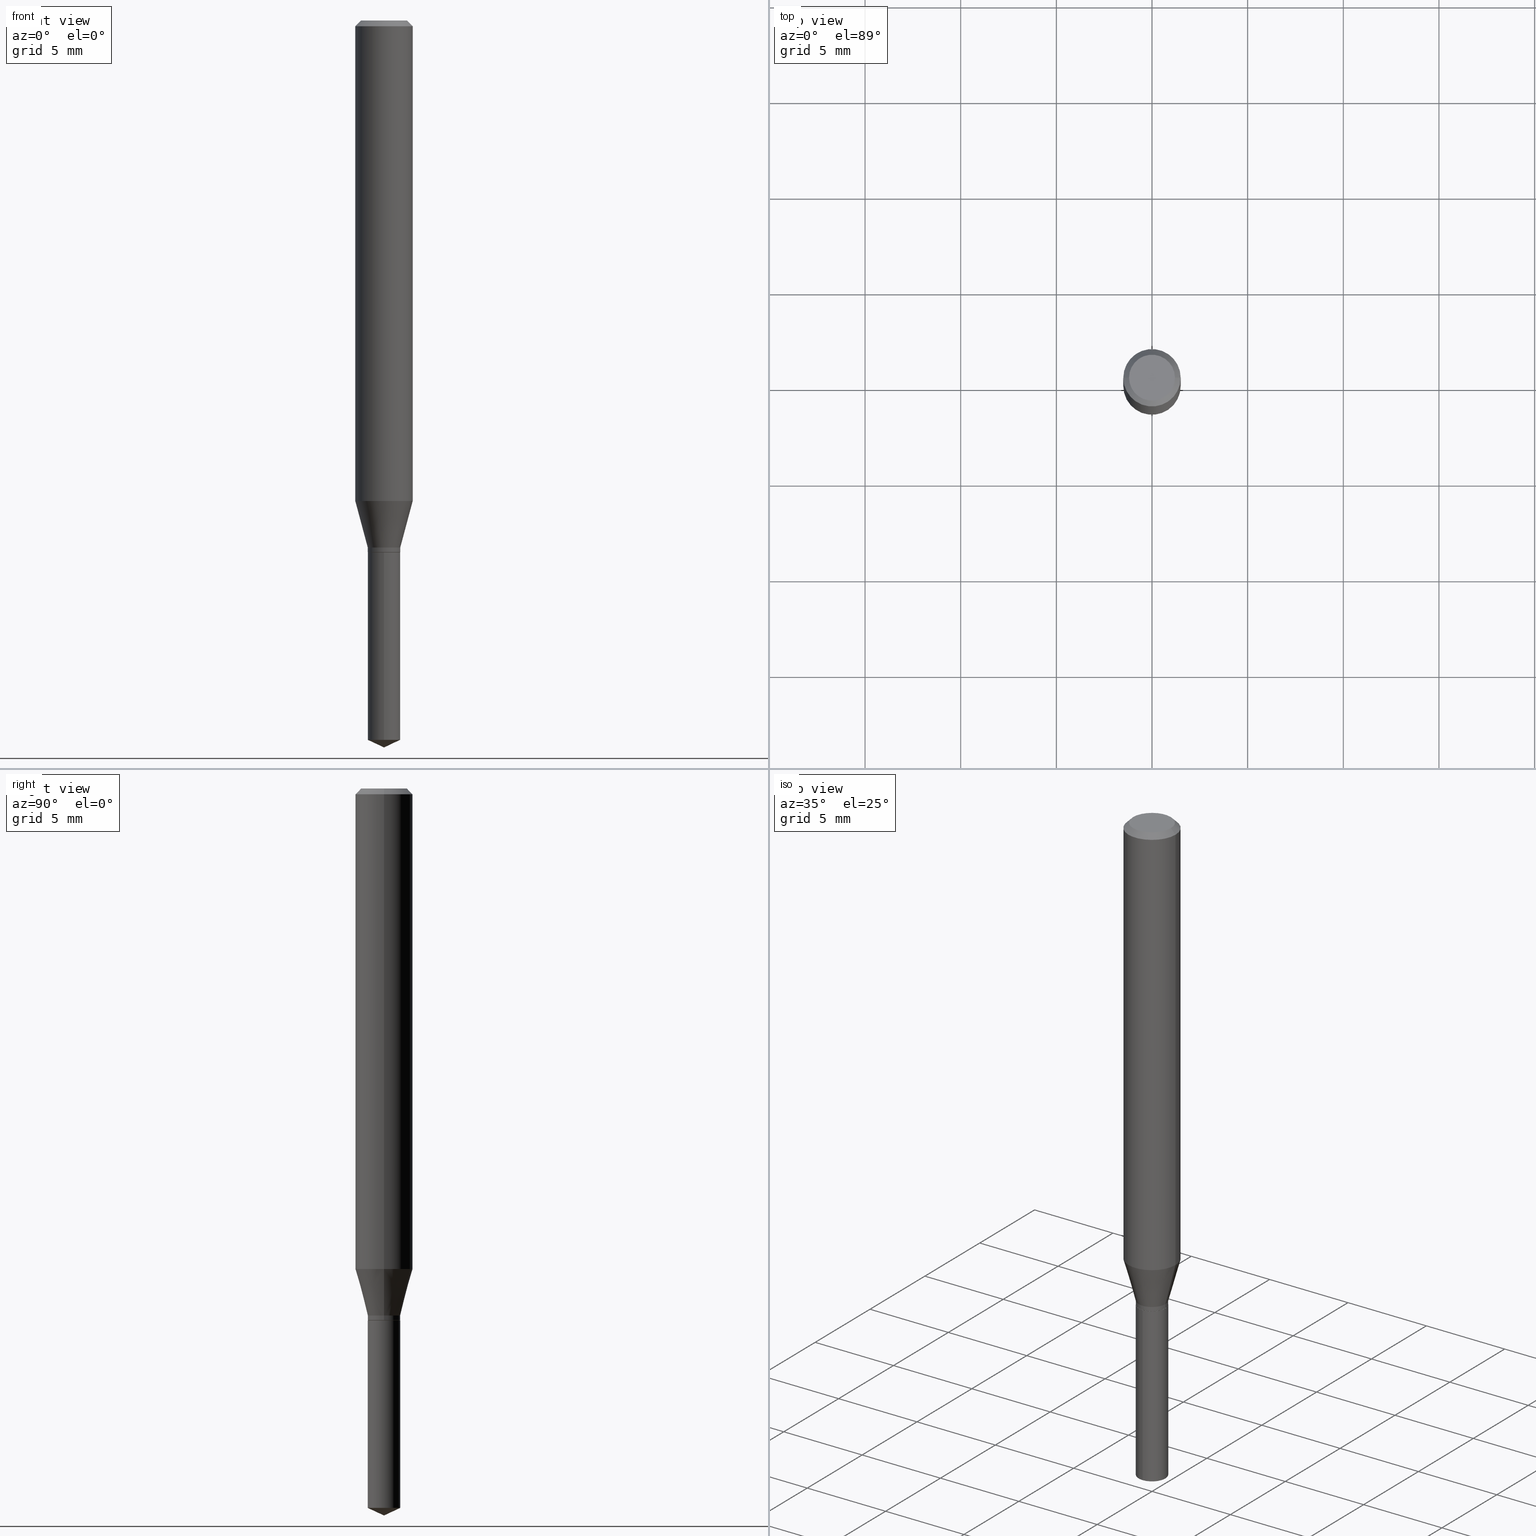
[diagram: canonical four-view strip — front | top / right | iso, engineering-drawing reading convention]
A machine part, canonical four-view strip (front | top / right | iso — engineering-drawing reading convention). The complete STEP part file that produces these views, byte-faithful:
ISO-10303-21;
HEADER;
FILE_DESCRIPTION (( 'STEP AP203' ),
    '1' );
FILE_NAME ('07908.STEP',
    '2024-04-24T05:54:59',
    ( '' ),
    ( '' ),
    'SwSTEP 2.0',
    'SolidWorks 2023',
    '' );
FILE_SCHEMA (( 'CONFIG_CONTROL_DESIGN' ));
ENDSEC;

DATA;
#1 = DIRECTION ( 'NONE',  ( 6.982962677686265922E-15, 1.000000000000000000, -3.491479321953280158E-15 ) ) ;
#2 = CONICAL_SURFACE ( 'NONE', #34, 0.03295000000000000012, 0.7853981633972775267 ) ;
#3 = FACE_OUTER_BOUND ( 'NONE', #113, .T. ) ;
#4 = ADVANCED_FACE ( 'NONE', ( #3 ), #220, .T. ) ;
#5 = CARTESIAN_POINT ( 'NONE',  ( 2.888098660104664204E-31, -4.123439461173780263E-17, -0.01181000000000007218 ) ) ;
#6 = AXIS2_PLACEMENT_3D ( 'NONE', #455, #20, #164 ) ;
#7 = CC_DESIGN_APPROVAL ( #147, ( #409 ) ) ;
#8 = DIRECTION ( 'NONE',  ( -1.000000000000000000, 6.982962677686266711E-15, 0.000000000000000000 ) ) ;
#9 = ORIENTED_EDGE ( 'NONE', *, *, #430, .F. ) ;
#10 = CARTESIAN_POINT ( 'NONE',  ( -0.05904999999999999832, 3.711095515056362547E-16, -0.01181000000000007218 ) ) ;
#11 = DIRECTION ( 'NONE',  ( -2.445468806185136597E-29, 3.491481338843145583E-15, 1.000000000000000000 ) ) ;
#12 = CARTESIAN_POINT ( 'NONE',  ( 2.676565608369631794E-29, -3.821426325363822773E-15, -1.094499999999999806 ) ) ;
#13 =( NAMED_UNIT ( * ) SI_UNIT ( $, .STERADIAN. ) SOLID_ANGLE_UNIT ( ) );
#14 = ORIENTED_EDGE ( 'NONE', *, *, #163, .T. ) ;
#15 = EDGE_CURVE ( 'NONE', #235, #295, #418, .T. ) ;
#16 = DIRECTION ( 'NONE',  ( 1.000000000000000000, 0.000000000000000000, 0.000000000000000000 ) ) ;
#17 = PRODUCT_DEFINITION_SHAPE ( 'NONE', 'NONE',  #484 ) ;
#18 = LINE ( 'NONE', #399, #22 ) ;
#19 = PERSON_AND_ORGANIZATION ( #272, #377 ) ;
#20 = DIRECTION ( 'NONE',  ( -2.445468806185136597E-29, 3.491481338843145583E-15, 1.000000000000000000 ) ) ;
#21 = DATE_AND_TIME ( #142, #160 ) ;
#22 = VECTOR ( 'NONE', #56, 39.37007874015748143 ) ;
#23 = AXIS2_PLACEMENT_3D ( 'NONE', #189, #153, #311 ) ;
#24 = DIRECTION ( 'NONE',  ( -6.982962677686264344E-15, -1.000000000000000000, 4.083479811157344024E-15 ) ) ;
#25 = CARTESIAN_POINT ( 'NONE',  ( 0.03295000000000000012, -4.051514945593585621E-15, -1.094500000000000028 ) ) ;
#26 = ORIENTED_EDGE ( 'NONE', *, *, #483, .T. ) ;
#27 = COORDINATED_UNIVERSAL_TIME_OFFSET ( 5, 0, .BEHIND. ) ;
#28 = DIRECTION ( 'NONE',  ( 1.000000000000000000, -6.982962677686264344E-15, 0.000000000000000000 ) ) ;
#29 = CARTESIAN_POINT ( 'NONE',  ( 2.675342873966538993E-29, -3.819680584694400481E-15, -1.093999999999999861 ) ) ;
#30 = VERTEX_POINT ( 'NONE', #120 ) ;
#31 = LINE ( 'NONE', #316, #442 ) ;
#32 = EDGE_CURVE ( 'NONE', #382, #92, #269, .T. ) ;
#33 = CIRCLE ( 'NONE', #342, 0.03295000000000000012 ) ;
#34 = AXIS2_PLACEMENT_3D ( 'NONE', #330, #405, #264 ) ;
#35 = LOCAL_TIME ( 1, 54, 59.00000000000000000, #140 ) ;
#36 = FACE_OUTER_BOUND ( 'NONE', #284, .T. ) ;
#37 = APPLICATION_CONTEXT ( 'configuration controlled 3d designs of mechanical parts and assemblies' ) ;
#38 = FACE_OUTER_BOUND ( 'NONE', #420, .T. ) ;
#39 = ORIENTED_EDGE ( 'NONE', *, *, #314, .F. ) ;
#40 = ADVANCED_FACE ( 'NONE', ( #344 ), #170, .T. ) ;
#41 = DIRECTION ( 'NONE',  ( -2.445468806185136877E-29, 3.491481338843145188E-15, 1.000000000000000000 ) ) ;
#42 = VERTEX_POINT ( 'NONE', #424 ) ;
#43 = ADVANCED_FACE ( 'NONE', ( #249 ), #152, .T. ) ;
#44 = MANIFOLD_SOLID_BREP ( 'Body-Move/Copy2[1]', #247 ) ;
#45 =( NAMED_UNIT ( * ) PLANE_ANGLE_UNIT ( ) SI_UNIT ( $, .RADIAN. ) );
#46 = ADVANCED_BREP_SHAPE_REPRESENTATION ( '07908', ( #44, #371, #329 ), #50 ) ;
#47 = ADVANCED_FACE ( 'NONE', ( #53 ), #394, .T. ) ;
#48 = CYLINDRICAL_SURFACE ( 'NONE', #348, 0.05905000000000006077 ) ;
#49 = AXIS2_PLACEMENT_3D ( 'NONE', #186, #336, #150 ) ;
#50 =( GEOMETRIC_REPRESENTATION_CONTEXT ( 3 ) GLOBAL_UNCERTAINTY_ASSIGNED_CONTEXT ( ( #101 ) ) GLOBAL_UNIT_ASSIGNED_CONTEXT ( ( #96, #45, #13 ) ) REPRESENTATION_CONTEXT ( 'NONE', 'WORKASPACE' ) );
#51 = ORIENTED_EDGE ( 'NONE', *, *, #462, .T. ) ;
#52 = CARTESIAN_POINT ( 'NONE',  ( 0.000000000000000000, 0.000000000000000000, 0.000000000000000000 ) ) ;
#53 = FACE_OUTER_BOUND ( 'NONE', #386, .T. ) ;
#54 = ORIENTED_EDGE ( 'NONE', *, *, #439, .F. ) ;
#55 = EDGE_CURVE ( 'NONE', #42, #464, #361, .T. ) ;
#56 = DIRECTION ( 'NONE',  ( -2.445470214571802396E-29, 3.491479321953280158E-15, 1.000000000000000000 ) ) ;
#57 = DIRECTION ( 'NONE',  ( -2.445468806185136597E-29, 3.491481338843145583E-15, 1.000000000000000000 ) ) ;
#58 = DIRECTION ( 'NONE',  ( -2.445470214571802116E-29, 3.491479321953280158E-15, 1.000000000000000000 ) ) ;
#59 = EDGE_CURVE ( 'NONE', #204, #464, #202, .T. ) ;
#60 = COORDINATED_UNIVERSAL_TIME_OFFSET ( 5, 0, .BEHIND. ) ;
#61 = CARTESIAN_POINT ( 'NONE',  ( 0.03345000000000000057, -4.053260686263006336E-15, -1.093999999999999861 ) ) ;
#62 = PERSON_AND_ORGANIZATION ( #272, #377 ) ;
#63 = APPLICATION_CONTEXT ( 'configuration controlled 3d designs of mechanical parts and assemblies' ) ;
#64 = DIRECTION ( 'NONE',  ( -6.982962677686264344E-15, -1.000000000000000000, 0.000000000000000000 ) ) ;
#65 = DIRECTION ( 'NONE',  ( 1.000000000000000000, -6.982962677686266711E-15, 0.000000000000000000 ) ) ;
#66 = EDGE_CURVE ( 'NONE', #295, #204, #31, .T. ) ;
#67 = EDGE_LOOP ( 'NONE', ( #168, #454, #14, #302 ) ) ;
#68 = CIRCLE ( 'NONE', #6, 0.05905000000000011628 ) ;
#69 = CARTESIAN_POINT ( 'NONE',  ( -0.03345000000000000057, 2.376765451117535162E-16, -1.645383787690265928E-30 ) ) ;
#70 = EDGE_LOOP ( 'NONE', ( #245, #26, #469, #388 ) ) ;
#71 = CARTESIAN_POINT ( 'NONE',  ( 3.658664905062460986E-29, -5.223606628546217219E-15, -1.496099999999999985 ) ) ;
#72 = EDGE_LOOP ( 'NONE', ( #340, #273, #82, #333 ) ) ;
#73 = DIRECTION ( 'NONE',  ( -6.982962677686268288E-15, -1.000000000000000000, 3.520397390770420738E-15 ) ) ;
#74 = DIRECTION ( 'NONE',  ( 1.000000000000000000, -6.982962677686264344E-15, 0.000000000000000000 ) ) ;
#75 = ORIENTED_EDGE ( 'NONE', *, *, #171, .T. ) ;
#76 = EDGE_CURVE ( 'NONE', #42, #434, #68, .T. ) ;
#77 = AXIS2_PLACEMENT_3D ( 'NONE', #29, #256, #74 ) ;
#78 = AXIS2_PLACEMENT_3D ( 'NONE', #427, #210, #240 ) ;
#79 = PLANE ( 'NONE',  #487 ) ;
#80 = CARTESIAN_POINT ( 'NONE',  ( 2.652110920307780249E-29, -3.786511511975391124E-15, -1.084499999999999797 ) ) ;
#81 = ORIENTED_EDGE ( 'NONE', *, *, #59, .F. ) ;
#82 = ORIENTED_EDGE ( 'NONE', *, *, #430, .T. ) ;
#83 = ADVANCED_FACE ( 'NONE', ( #364 ), #2, .T. ) ;
#84 = ORIENTED_EDGE ( 'NONE', *, *, #324, .T. ) ;
#85 = CLOSED_SHELL ( 'NONE', ( #83, #450, #474, #383, #47, #40, #4, #345, #320, #299, #238, #43 ) ) ;
#86 = CARTESIAN_POINT ( 'NONE',  ( 2.676565608369632355E-29, -3.821426325363822773E-15, -1.094500000000000028 ) ) ;
#87 = APPLICATION_PROTOCOL_DEFINITION ( 'international standard', 'config_control_design', 1994, #63 ) ;
#88 = DIRECTION ( 'NONE',  ( -2.445468806185136877E-29, 3.491481338843145188E-15, 1.000000000000000000 ) ) ;
#89 = EDGE_CURVE ( 'NONE', #30, #92, #322, .T. ) ;
#90 = LENGTH_MEASURE_WITH_UNIT ( LENGTH_MEASURE( 0.02539999999999999897 ), #251 );
#91 = LINE ( 'NONE', #467, #432 ) ;
#92 = VERTEX_POINT ( 'NONE', #225 ) ;
#93 = CC_DESIGN_PERSON_AND_ORGANIZATION_ASSIGNMENT ( #19, #447, ( #484 ) ) ;
#94 = AXIS2_PLACEMENT_3D ( 'NONE', #335, #144, #64 ) ;
#95 = APPROVAL_PERSON_ORGANIZATION ( #62, #309, #185 ) ;
#96 =( CONVERSION_BASED_UNIT ( 'INCH', #90 ) LENGTH_UNIT ( ) NAMED_UNIT ( #118 ) );
#97 = ORIENTED_EDGE ( 'NONE', *, *, #89, .F. ) ;
#98 = DIRECTION ( 'NONE',  ( 1.000000000000000000, -6.982962677686266711E-15, 4.876176775795935793E-29 ) ) ;
#99 = PRODUCT ( '07908', '07908', '', ( #282 ) ) ;
#100 = ORIENTED_EDGE ( 'NONE', *, *, #462, .F. ) ;
#101 = UNCERTAINTY_MEASURE_WITH_UNIT (LENGTH_MEASURE( 1.000000000000000082E-05 ), #96, 'distance_accuracy_value', 'NONE');
#102 = PERSON_AND_ORGANIZATION ( #272, #377 ) ;
#103 = DIRECTION ( 'NONE',  ( 2.445468806185136597E-29, -3.491481338843145583E-15, -1.000000000000000000 ) ) ;
#104 = VECTOR ( 'NONE', #222, 39.37007874015748143 ) ;
#105 = SECURITY_CLASSIFICATION_LEVEL ( 'unclassified' ) ;
#106 = APPROVAL_PERSON_ORGANIZATION ( #215, #147, #406 ) ;
#107 = FACE_OUTER_BOUND ( 'NONE', #297, .T. ) ;
#108 = CARTESIAN_POINT ( 'NONE',  ( -0.03295000000000000012, -3.587302493930870304E-15, -1.094500000000000028 ) ) ;
#109 = LINE ( 'NONE', #183, #174 ) ;
#110 = ORIENTED_EDGE ( 'NONE', *, *, #55, .T. ) ;
#111 = CIRCLE ( 'NONE', #478, 0.04724000000000000421 ) ;
#112 = CARTESIAN_POINT ( 'NONE',  ( 0.03345000000000000057, -2.335801015686056085E-16, 1.631081131503740528E-30 ) ) ;
#113 = EDGE_LOOP ( 'NONE', ( #223, #380, #369, #426 ) ) ;
#114 = DIRECTION ( 'NONE',  ( -2.445470214571802116E-29, 3.491479321953280158E-15, 1.000000000000000000 ) ) ;
#115 = ORIENTED_EDGE ( 'NONE', *, *, #358, .T. ) ;
#116 = AXIS2_PLACEMENT_3D ( 'NONE', #80, #231, #241 ) ;
#117 = CONICAL_SURFACE ( 'NONE', #281, 84.42940631927513095, 1.134464013796319559 ) ;
#118 = DIMENSIONAL_EXPONENTS ( 1.000000000000000000, 0.000000000000000000, 0.000000000000000000, 0.000000000000000000, 0.000000000000000000, 0.000000000000000000, 0.000000000000000000 ) ;
#119 = CARTESIAN_POINT ( 'NONE',  ( 2.652110920307780249E-29, -3.786511511975391124E-15, -1.084499999999999797 ) ) ;
#120 = CARTESIAN_POINT ( 'NONE',  ( -2.335801015685693702E-16, -0.03345000000000517004, -1.480502008834715388 ) ) ;
#121 = DIRECTION ( 'NONE',  ( 1.000000000000000000, -6.982962677686265922E-15, 4.876176775795935793E-29 ) ) ;
#122 = PERSON_AND_ORGANIZATION ( #272, #377 ) ;
#123 = ADVANCED_FACE ( 'NONE', ( #217 ), #445, .T. ) ;
#124 = DIRECTION ( 'NONE',  ( -6.982962677686264344E-15, -1.000000000000000000, 4.083479811157344024E-15 ) ) ;
#125 = AXIS2_PLACEMENT_3D ( 'NONE', #301, #303, #419 ) ;
#126 = CONICAL_SURFACE ( 'NONE', #307, 0.05904999999999999832, 0.7853981633974452814 ) ;
#127 = DIRECTION ( 'NONE',  ( 1.000000000000000000, -6.982962677686264344E-15, 0.000000000000000000 ) ) ;
#128 = DIRECTION ( 'NONE',  ( -1.000000000000000000, 6.982962677686266711E-15, 0.000000000000000000 ) ) ;
#129 = DIRECTION ( 'NONE',  ( -2.445468806185136597E-29, 3.491481338843145583E-15, 1.000000000000000000 ) ) ;
#130 = CARTESIAN_POINT ( 'NONE',  ( 0.000000000000000000, 0.000000000000000000, 0.000000000000000000 ) ) ;
#131 = CARTESIAN_POINT ( 'NONE',  ( 3.658668015054778287E-29, -5.223602213574301462E-15, -1.496099999999999985 ) ) ;
#132 = DIRECTION ( 'NONE',  ( -1.000000000000000000, 6.982962677686265922E-15, -4.876176775795935793E-29 ) ) ;
#133 = AXIS2_PLACEMENT_3D ( 'NONE', #488, #375, #24 ) ;
#134 = CIRCLE ( 'NONE', #78, 0.03345000000000000057 ) ;
#135 = EDGE_CURVE ( 'NONE', #449, #195, #33, .T. ) ;
#136 = DIRECTION ( 'NONE',  ( 1.000000000000000000, -6.982962677686266711E-15, 4.876176775795935793E-29 ) ) ;
#137 = EDGE_LOOP ( 'NONE', ( #411, #115, #341, #266 ) ) ;
#138 = DIRECTION ( 'NONE',  ( 1.000000000000000000, -6.982962677686266711E-15, 4.876185090822587894E-29 ) ) ;
#139 = PLANE ( 'NONE',  #306 ) ;
#140 = COORDINATED_UNIVERSAL_TIME_OFFSET ( 5, 0, .BEHIND. ) ;
#141 = AXIS2_PLACEMENT_3D ( 'NONE', #206, #11, #318 ) ;
#142 = CALENDAR_DATE ( 2024, 24, 4 ) ;
#143 = AXIS2_PLACEMENT_3D ( 'NONE', #465, #57, #127 ) ;
#144 = DIRECTION ( 'NONE',  ( -2.445470214571802116E-29, 3.491479321953280158E-15, 1.000000000000000000 ) ) ;
#145 = ORIENTED_EDGE ( 'NONE', *, *, #358, .F. ) ;
#146 = APPROVAL_DATE_TIME ( #444, #396 ) ;
#147 = APPROVAL ( #218, 'UNSPECIFIED' ) ;
#148 = EDGE_LOOP ( 'NONE', ( #158, #242, #252, #162 ) ) ;
#149 = COORDINATED_UNIVERSAL_TIME_OFFSET ( 5, 0, .BEHIND. ) ;
#150 = DIRECTION ( 'NONE',  ( 1.000000000000000000, -6.982962677686264344E-15, 0.000000000000000000 ) ) ;
#151 = ORIENTED_EDGE ( 'NONE', *, *, #483, .F. ) ;
#152 = CONICAL_SURFACE ( 'NONE', #338, 0.03295000000000000012, 0.7853981633972775267 ) ;
#153 = DIRECTION ( 'NONE',  ( -2.445468806185136597E-29, 3.491481338843145583E-15, 1.000000000000000000 ) ) ;
#154 = PRODUCT_RELATED_PRODUCT_CATEGORY ( 'detail', '', ( #99 ) ) ;
#155 = CARTESIAN_POINT ( 'NONE',  ( -0.04724000000000000421, 3.504923541997677355E-16, -3.380025165670481712E-19 ) ) ;
#156 = ORIENTED_EDGE ( 'NONE', *, *, #270, .T. ) ;
#157 = PLANE ( 'NONE',  #125 ) ;
#158 = ORIENTED_EDGE ( 'NONE', *, *, #55, .F. ) ;
#159 = ORIENTED_EDGE ( 'NONE', *, *, #188, .T. ) ;
#160 = LOCAL_TIME ( 1, 54, 59.00000000000000000, #27 ) ;
#161 = CARTESIAN_POINT ( 'NONE',  ( 8.265746106709734507E-48, -1.180129479067563789E-33, -3.380025165646692144E-19 ) ) ;
#162 = ORIENTED_EDGE ( 'NONE', *, *, #393, .F. ) ;
#163 = EDGE_CURVE ( 'NONE', #337, #323, #227, .T. ) ;
#164 = DIRECTION ( 'NONE',  ( 1.000000000000000000, -6.982962677686266711E-15, 0.000000000000000000 ) ) ;
#165 = CARTESIAN_POINT ( 'NONE',  ( -0.03345000000000000057, -3.565419503223141645E-15, -1.084499999999999797 ) ) ;
#166 = CIRCLE ( 'NONE', #143, 0.03295000000000000012 ) ;
#167 = FACE_OUTER_BOUND ( 'NONE', #226, .T. ) ;
#168 = ORIENTED_EDGE ( 'NONE', *, *, #188, .F. ) ;
#169 = CARTESIAN_POINT ( 'NONE',  ( -0.03295000000000000012, -3.584653266756758314E-15, -1.094500000000000028 ) ) ;
#170 = CYLINDRICAL_SURFACE ( 'NONE', #390, 0.03345000000000000057 ) ;
#171 = EDGE_CURVE ( 'NONE', #398, #42, #109, .T. ) ;
#172 = DIRECTION ( 'NONE',  ( 0.000000000000000000, 0.000000000000000000, 1.000000000000000000 ) ) ;
#173 = VERTEX_POINT ( 'NONE', #332 ) ;
#174 = VECTOR ( 'NONE', #448, 39.37007874015748854 ) ;
#175 = LOCAL_TIME ( 1, 54, 59.00000000000000000, #60 ) ;
#176 = APPROVAL_ROLE ( '' ) ;
#177 = EDGE_CURVE ( 'NONE', #195, #337, #489, .T. ) ;
#178 = FACE_OUTER_BOUND ( 'NONE', #310, .T. ) ;
#179 = DIRECTION ( 'NONE',  ( 2.438088387897960049E-29, -3.491481338843145188E-15, -1.000000000000000000 ) ) ;
#180 = PERSON_AND_ORGANIZATION ( #272, #377 ) ;
#181 = AXIS2_PLACEMENT_3D ( 'NONE', #397, #129, #65 ) ;
#182 = AXIS2_PLACEMENT_3D ( 'NONE', #201, #207, #431 ) ;
#183 = CARTESIAN_POINT ( 'NONE',  ( -0.03345000000000000057, -3.548834966863637362E-15, -1.084499999999999797 ) ) ;
#184 = ORIENTED_EDGE ( 'NONE', *, *, #253, .T. ) ;
#185 = APPROVAL_ROLE ( '' ) ;
#186 = CARTESIAN_POINT ( 'NONE',  ( 2.675342873966538993E-29, -3.819680584694400481E-15, -1.093999999999999861 ) ) ;
#187 = DATE_TIME_ROLE ( 'classification_date' ) ;
#188 = EDGE_CURVE ( 'NONE', #173, #398, #262, .T. ) ;
#189 = CARTESIAN_POINT ( 'NONE',  ( 2.888098660104664204E-31, -4.123439461173780263E-17, -0.01181000000000007218 ) ) ;
#190 = EDGE_LOOP ( 'NONE', ( #145, #373, #232, #228 ) ) ;
#191 = CONICAL_SURFACE ( 'NONE', #343, 84.42940631927513095, 1.134464013796319559 ) ;
#192 = CC_DESIGN_PERSON_AND_ORGANIZATION_ASSIGNMENT ( #122, #425, ( #99 ) ) ;
#193 = ORIENTED_EDGE ( 'NONE', *, *, #468, .T. ) ;
#194 = DIRECTION ( 'NONE',  ( 2.445470214571801836E-29, -3.491479321953280158E-15, -1.000000000000000000 ) ) ;
#195 = VERTEX_POINT ( 'NONE', #25 ) ;
#196 = CONICAL_SURFACE ( 'NONE', #471, 0.05904999999999999832, 0.7853981633974452814 ) ;
#197 = AXIS2_PLACEMENT_3D ( 'NONE', #374, #114, #482 ) ;
#198 = EDGE_CURVE ( 'NONE', #337, #173, #229, .T. ) ;
#199 = DIRECTION ( 'NONE',  ( 6.439704144417039031E-15, 0.9063077870366536004, 0.4226182617406913367 ) ) ;
#200 = CARTESIAN_POINT ( 'NONE',  ( 2.676565608369631794E-29, -3.821426325363822773E-15, -1.094499999999999806 ) ) ;
#201 = CARTESIAN_POINT ( 'NONE',  ( 2.418469606182781541E-29, -3.452933636769214658E-15, -0.9889594993262362799 ) ) ;
#202 = CIRCLE ( 'NONE', #181, 0.05904999999999999832 ) ;
#203 = DIRECTION ( 'NONE',  ( 0.2588190451025211281, 1.565188264969622954E-15, 0.9659258262890679791 ) ) ;
#204 = VERTEX_POINT ( 'NONE', #413 ) ;
#205 = CARTESIAN_POINT ( 'NONE',  ( -0.05904999999999999832, -1.327508530224135714E-15, -0.01181000000000007218 ) ) ;
#206 = CARTESIAN_POINT ( 'NONE',  ( 0.000000000000000000, 0.000000000000000000, 0.000000000000000000 ) ) ;
#207 = DIRECTION ( 'NONE',  ( -2.445468806185136597E-29, 3.491481338843145583E-15, 1.000000000000000000 ) ) ;
#208 = EDGE_LOOP ( 'NONE', ( #480, #193, #456, #263 ) ) ;
#209 = DIRECTION ( 'NONE',  ( -2.445468806185136597E-29, 3.491481338843145583E-15, 1.000000000000000000 ) ) ;
#210 = DIRECTION ( 'NONE',  ( -2.445470214571802116E-29, 3.491479321953280158E-15, 1.000000000000000000 ) ) ;
#211 = CARTESIAN_POINT ( 'NONE',  ( 0.04724000000000000421, -3.852183633974369345E-16, -3.380025165621689721E-19 ) ) ;
#212 = AXIS2_PLACEMENT_3D ( 'NONE', #346, #234, #124 ) ;
#213 = AXIS2_PLACEMENT_3D ( 'NONE', #224, #261, #28 ) ;
#214 = CALENDAR_DATE ( 2024, 24, 4 ) ;
#215 = PERSON_AND_ORGANIZATION ( #272, #377 ) ;
#216 = EDGE_CURVE ( 'NONE', #382, #30, #416, .T. ) ;
#217 = FACE_OUTER_BOUND ( 'NONE', #70, .T. ) ;
#218 = APPROVAL_STATUS ( 'not_yet_approved' ) ;
#219 = ORIENTED_EDGE ( 'NONE', *, *, #253, .F. ) ;
#220 = CONICAL_SURFACE ( 'NONE', #402, 0.03345000000000000057, 0.2617993877991498519 ) ;
#221 = CALENDAR_DATE ( 2024, 24, 4 ) ;
#222 = DIRECTION ( 'NONE',  ( -2.445468806185136877E-29, 3.491481338843145188E-15, 1.000000000000000000 ) ) ;
#223 = ORIENTED_EDGE ( 'NONE', *, *, #171, .F. ) ;
#224 = CARTESIAN_POINT ( 'NONE',  ( 2.652110920307780249E-29, -3.786511511975391124E-15, -1.084499999999999797 ) ) ;
#225 = CARTESIAN_POINT ( 'NONE',  ( 2.376765451117897052E-16, 0.03344999999999482415, -1.480502008834715388 ) ) ;
#226 = EDGE_LOOP ( 'NONE', ( #51, #110, #81, #265 ) ) ;
#227 = LINE ( 'NONE', #112, #362 ) ;
#228 = ORIENTED_EDGE ( 'NONE', *, *, #233, .F. ) ;
#229 = CIRCLE ( 'NONE', #49, 0.03345000000000000057 ) ;
#230 = AXIS2_PLACEMENT_3D ( 'NONE', #312, #429, #466 ) ;
#231 = DIRECTION ( 'NONE',  ( -2.445468806185136597E-29, 3.491481338843145583E-15, 1.000000000000000000 ) ) ;
#232 = ORIENTED_EDGE ( 'NONE', *, *, #177, .T. ) ;
#233 = EDGE_CURVE ( 'NONE', #173, #337, #452, .T. ) ;
#234 = DIRECTION ( 'NONE',  ( -2.445470214571802116E-29, 3.491479321953280158E-15, 1.000000000000000000 ) ) ;
#235 = VERTEX_POINT ( 'NONE', #155 ) ;
#236 = CIRCLE ( 'NONE', #212, 0.03345000000000000057 ) ;
#237 = DIRECTION ( 'NONE',  ( -2.445468806185136597E-29, 3.491481338843145583E-15, 1.000000000000000000 ) ) ;
#238 = ADVANCED_FACE ( 'NONE', ( #36 ), #157, .F. ) ;
#239 = CC_DESIGN_DATE_AND_TIME_ASSIGNMENT ( #331, #187, ( #315 ) ) ;
#240 = DIRECTION ( 'NONE',  ( -6.982962677686264344E-15, -1.000000000000000000, 0.000000000000000000 ) ) ;
#241 = DIRECTION ( 'NONE',  ( 1.000000000000000000, -6.982962677686264344E-15, 0.000000000000000000 ) ) ;
#242 = ORIENTED_EDGE ( 'NONE', *, *, #76, .T. ) ;
#243 = CYLINDRICAL_SURFACE ( 'NONE', #254, 0.05905000000000006077 ) ;
#244 = DIRECTION ( 'NONE',  ( -2.445470214571802116E-29, 3.491479321953280158E-15, 1.000000000000000000 ) ) ;
#245 = ORIENTED_EDGE ( 'NONE', *, *, #468, .F. ) ;
#246 = DIRECTION ( 'NONE',  ( -2.445470214571802396E-29, 3.491479321953280158E-15, 1.000000000000000000 ) ) ;
#247 = CLOSED_SHELL ( 'NONE', ( #368, #379, #354, #123, #275 ) ) ;
#248 = APPROVAL_PERSON_ORGANIZATION ( #180, #396, #176 ) ;
#249 = FACE_OUTER_BOUND ( 'NONE', #190, .T. ) ;
#250 = CARTESIAN_POINT ( 'NONE',  ( -2.335801015685788365E-16, -0.03345000000000382390, -1.094499999999999806 ) ) ;
#251 =( LENGTH_UNIT ( ) NAMED_UNIT ( * ) SI_UNIT ( $, .METRE. ) );
#252 = ORIENTED_EDGE ( 'NONE', *, *, #283, .T. ) ;
#253 = EDGE_CURVE ( 'NONE', #323, #398, #328, .T. ) ;
#254 = AXIS2_PLACEMENT_3D ( 'NONE', #130, #349, #136 ) ;
#255 = PERSON_AND_ORGANIZATION_ROLE ( 'classification_officer' ) ;
#256 = DIRECTION ( 'NONE',  ( -2.445468806185136597E-29, 3.491481338843145583E-15, 1.000000000000000000 ) ) ;
#257 = CARTESIAN_POINT ( 'NONE',  ( 0.03295000000000000012, -4.051514945593585621E-15, -1.094500000000000028 ) ) ;
#258 = ORIENTED_EDGE ( 'NONE', *, *, #216, .T. ) ;
#259 = AXIS2_PLACEMENT_3D ( 'NONE', #12, #244, #319 ) ;
#260 = CC_DESIGN_SECURITY_CLASSIFICATION ( #315, ( #409 ) ) ;
#261 = DIRECTION ( 'NONE',  ( -2.445468806185136597E-29, 3.491481338843145583E-15, 1.000000000000000000 ) ) ;
#262 = LINE ( 'NONE', #69, #104 ) ;
#263 = ORIENTED_EDGE ( 'NONE', *, *, #289, .F. ) ;
#264 = DIRECTION ( 'NONE',  ( 1.000000000000000000, -6.982962677686264344E-15, 0.000000000000000000 ) ) ;
#265 = ORIENTED_EDGE ( 'NONE', *, *, #283, .F. ) ;
#266 = ORIENTED_EDGE ( 'NONE', *, *, #177, .F. ) ;
#267 = VECTOR ( 'NONE', #246, 39.37007874015748143 ) ;
#268 = ORIENTED_EDGE ( 'NONE', *, *, #66, .T. ) ;
#269 = LINE ( 'NONE', #131, #477 ) ;
#270 = EDGE_CURVE ( 'NONE', #417, #352, #236, .T. ) ;
#271 = ORIENTED_EDGE ( 'NONE', *, *, #198, .T. ) ;
#272 = PERSON ( 'UNSPECIFIED', 'UNSPECIFIED', 'UNSPECIFIED', ('UNSPECIFIED'), ('UNSPECIFIED'), ('UNSPECIFIED') ) ;
#273 = ORIENTED_EDGE ( 'NONE', *, *, #15, .F. ) ;
#274 = DIRECTION ( 'NONE',  ( 2.445468806185136597E-29, -3.491481338843145583E-15, -1.000000000000000000 ) ) ;
#275 = ADVANCED_FACE ( 'NONE', ( #38 ), #79, .F. ) ;
#276 = EDGE_LOOP ( 'NONE', ( #365, #268, #436, #9 ) ) ;
#277 = CARTESIAN_POINT ( 'NONE',  ( 2.376765451117897545E-16, 0.03344999999999617724, -1.094500000000000028 ) ) ;
#278 = CARTESIAN_POINT ( 'NONE',  ( 0.03345000000000000057, -4.020091613543996190E-15, -1.084499999999999797 ) ) ;
#279 = CARTESIAN_POINT ( 'NONE',  ( 0.000000000000000000, 0.000000000000000000, 0.000000000000000000 ) ) ;
#280 = DIRECTION ( 'NONE',  ( -2.445468806185136597E-29, 3.491481338843145583E-15, 1.000000000000000000 ) ) ;
#281 = AXIS2_PLACEMENT_3D ( 'NONE', #437, #58, #73 ) ;
#282 = MECHANICAL_CONTEXT ( 'NONE', #37, 'mechanical' ) ;
#283 = EDGE_CURVE ( 'NONE', #434, #204, #421, .T. ) ;
#284 = EDGE_LOOP ( 'NONE', ( #54, #414 ) ) ;
#285 = FACE_OUTER_BOUND ( 'NONE', #490, .T. ) ;
#286 = DESIGN_CONTEXT ( 'detailed design', #63, 'design' ) ;
#287 = PERSON_AND_ORGANIZATION ( #272, #377 ) ;
#288 = CARTESIAN_POINT ( 'NONE',  ( 4.132873053354867254E-48, -5.900647395337818946E-34, -1.690012582823346072E-19 ) ) ;
#289 = EDGE_CURVE ( 'NONE', #30, #352, #18, .T. ) ;
#290 = DATE_AND_TIME ( #221, #35 ) ;
#291 = VECTOR ( 'NONE', #372, 39.37007874015748854 ) ;
#292 = VECTOR ( 'NONE', #367, 39.37007874015748143 ) ;
#293 = PERSON_AND_ORGANIZATION ( #272, #377 ) ;
#294 = CARTESIAN_POINT ( 'NONE',  ( 2.676565608369632355E-29, -3.821426325363822773E-15, -1.094500000000000028 ) ) ;
#295 = VERTEX_POINT ( 'NONE', #211 ) ;
#296 = DIRECTION ( 'NONE',  ( -2.445470214571802116E-29, 3.491479321953280158E-15, 1.000000000000000000 ) ) ;
#297 = EDGE_LOOP ( 'NONE', ( #486, #304, #97 ) ) ;
#298 = LOCAL_TIME ( 1, 54, 59.00000000000000000, #149 ) ;
#299 = ADVANCED_FACE ( 'NONE', ( #475 ), #139, .F. ) ;
#300 = CYLINDRICAL_SURFACE ( 'NONE', #197, 0.03345000000000000057 ) ;
#301 = CARTESIAN_POINT ( 'NONE',  ( -4.917366192118304542E-30, -8.358615443824423070E-15, -1.094500000000000028 ) ) ;
#302 = ORIENTED_EDGE ( 'NONE', *, *, #423, .F. ) ;
#303 = DIRECTION ( 'NONE',  ( -2.438088387897960049E-29, 3.491481338843145188E-15, 1.000000000000000000 ) ) ;
#304 = ORIENTED_EDGE ( 'NONE', *, *, #32, .T. ) ;
#305 = DIRECTION ( 'NONE',  ( -2.445468806185136597E-29, 3.491481338843145583E-15, 1.000000000000000000 ) ) ;
#306 = AXIS2_PLACEMENT_3D ( 'NONE', #288, #179, #132 ) ;
#307 = AXIS2_PLACEMENT_3D ( 'NONE', #5, #274, #8 ) ;
#308 = DIRECTION ( 'NONE',  ( -2.445468806185136597E-29, 3.491481338843145583E-15, 1.000000000000000000 ) ) ;
#309 = APPROVAL ( #366, 'UNSPECIFIED' ) ;
#310 = EDGE_LOOP ( 'NONE', ( #184, #75, #100, #39 ) ) ;
#311 = DIRECTION ( 'NONE',  ( 1.000000000000000000, -6.982962677686266711E-15, 0.000000000000000000 ) ) ;
#312 = CARTESIAN_POINT ( 'NONE',  ( 2.652110920307780249E-29, -3.786511511975391124E-15, -1.084499999999999797 ) ) ;
#313 = VECTOR ( 'NONE', #410, 39.37007874015748143 ) ;
#314 = EDGE_CURVE ( 'NONE', #323, #434, #91, .T. ) ;
#315 = SECURITY_CLASSIFICATION ( '', '', #105 ) ;
#316 = CARTESIAN_POINT ( 'NONE',  ( 0.05904999999999999832, -4.463468013801466955E-16, -0.01181000000000007218 ) ) ;
#317 = FACE_OUTER_BOUND ( 'NONE', #276, .T. ) ;
#318 = DIRECTION ( 'NONE',  ( 1.000000000000000000, -6.982962677686265922E-15, 4.876176775795935793E-29 ) ) ;
#319 = DIRECTION ( 'NONE',  ( -6.982962677686264344E-15, -1.000000000000000000, 4.083479811157344024E-15 ) ) ;
#320 = ADVANCED_FACE ( 'NONE', ( #428 ), #196, .T. ) ;
#321 = CARTESIAN_POINT ( 'NONE',  ( 0.05905000000000011628, -3.865277582886589578E-15, -0.9889594993262362799 ) ) ;
#322 = CIRCLE ( 'NONE', #94, 0.03345000000000000057 ) ;
#323 = VERTEX_POINT ( 'NONE', #278 ) ;
#324 = EDGE_CURVE ( 'NONE', #352, #417, #408, .T. ) ;
#325 = CC_DESIGN_PERSON_AND_ORGANIZATION_ASSIGNMENT ( #102, #255, ( #315 ) ) ;
#326 = CALENDAR_DATE ( 2024, 24, 4 ) ;
#327 = PERSON_AND_ORGANIZATION_ROLE ( 'creator' ) ;
#328 = CIRCLE ( 'NONE', #116, 0.03345000000000000057 ) ;
#329 = AXIS2_PLACEMENT_3D ( 'NONE', #52, #172, #16 ) ;
#330 = CARTESIAN_POINT ( 'NONE',  ( 2.676565608369632355E-29, -3.821426325363822773E-15, -1.094500000000000028 ) ) ;
#331 = DATE_AND_TIME ( #404, #298 ) ;
#332 = CARTESIAN_POINT ( 'NONE',  ( -0.03345000000000000057, -3.565419503223141645E-15, -1.093999999999999861 ) ) ;
#333 = ORIENTED_EDGE ( 'NONE', *, *, #393, .T. ) ;
#334 = FACE_OUTER_BOUND ( 'NONE', #208, .T. ) ;
#335 = CARTESIAN_POINT ( 'NONE',  ( 3.620522023739810331E-29, -5.169144357442658314E-15, -1.480502008834715388 ) ) ;
#336 = DIRECTION ( 'NONE',  ( -2.445468806185136597E-29, 3.491481338843145583E-15, 1.000000000000000000 ) ) ;
#337 = VERTEX_POINT ( 'NONE', #61 ) ;
#338 = AXIS2_PLACEMENT_3D ( 'NONE', #86, #237, #384 ) ;
#339 = CONICAL_SURFACE ( 'NONE', #213, 0.03345000000000000057, 0.2617993877991498519 ) ;
#340 = ORIENTED_EDGE ( 'NONE', *, *, #66, .F. ) ;
#341 = ORIENTED_EDGE ( 'NONE', *, *, #198, .F. ) ;
#342 = AXIS2_PLACEMENT_3D ( 'NONE', #294, #485, #457 ) ;
#343 = AXIS2_PLACEMENT_3D ( 'NONE', #412, #296, #451 ) ;
#344 = FACE_OUTER_BOUND ( 'NONE', #67, .T. ) ;
#345 = ADVANCED_FACE ( 'NONE', ( #387 ), #48, .T. ) ;
#346 = CARTESIAN_POINT ( 'NONE',  ( 2.676565608369631794E-29, -3.821426325363822773E-15, -1.094499999999999806 ) ) ;
#347 = AXIS2_PLACEMENT_3D ( 'NONE', #161, #308, #461 ) ;
#348 = AXIS2_PLACEMENT_3D ( 'NONE', #470, #280, #98 ) ;
#349 = DIRECTION ( 'NONE',  ( -2.445468806185136597E-29, 3.491481338843145583E-15, 1.000000000000000000 ) ) ;
#350 = EDGE_LOOP ( 'NONE', ( #446, #473 ) ) ;
#351 = DIRECTION ( 'NONE',  ( -0.7071067811865453523, 2.468850131082234184E-15, -0.7071067811865496822 ) ) ;
#352 = VERTEX_POINT ( 'NONE', #250 ) ;
#353 = EDGE_CURVE ( 'NONE', #295, #235, #111, .T. ) ;
#354 = ADVANCED_FACE ( 'NONE', ( #285 ), #117, .T. ) ;
#355 = CC_DESIGN_APPROVAL ( #396, ( #484 ) ) ;
#356 = APPROVAL_STATUS ( 'not_yet_approved' ) ;
#357 = SHAPE_DEFINITION_REPRESENTATION ( #17, #46 ) ;
#358 = EDGE_CURVE ( 'NONE', #449, #173, #479, .T. ) ;
#359 = DIRECTION ( 'NONE',  ( -2.445468806185136877E-29, 3.491481338843145188E-15, 1.000000000000000000 ) ) ;
#360 = APPROVAL_DATE_TIME ( #290, #147 ) ;
#361 = LINE ( 'NONE', #370, #376 ) ;
#362 = VECTOR ( 'NONE', #359, 39.37007874015748143 ) ;
#363 = LOCAL_TIME ( 1, 54, 59.00000000000000000, #438 ) ;
#364 = FACE_OUTER_BOUND ( 'NONE', #137, .T. ) ;
#365 = ORIENTED_EDGE ( 'NONE', *, *, #353, .F. ) ;
#366 = APPROVAL_STATUS ( 'not_yet_approved' ) ;
#367 = DIRECTION ( 'NONE',  ( -0.7071067811864267805, 7.493145998869918709E-15, 0.7071067811866682540 ) ) ;
#368 = ADVANCED_FACE ( 'NONE', ( #334 ), #300, .T. ) ;
#369 = ORIENTED_EDGE ( 'NONE', *, *, #314, .T. ) ;
#370 = CARTESIAN_POINT ( 'NONE',  ( -0.05905000000000006077, 4.195754854663395916E-16, -2.904631170795524694E-30 ) ) ;
#371 = MANIFOLD_SOLID_BREP ( 'Body-Move/Copy2[2]', #85 ) ;
#372 = DIRECTION ( 'NONE',  ( -6.328713451373384367E-15, -0.9063077870366507138, 0.4226182617406976649 ) ) ;
#373 = ORIENTED_EDGE ( 'NONE', *, *, #135, .T. ) ;
#374 = CARTESIAN_POINT ( 'NONE',  ( 2.676565608369631794E-29, -3.821426325363822773E-15, -1.094499999999999806 ) ) ;
#375 = DIRECTION ( 'NONE',  ( -2.445470214571802116E-29, 3.491479321953280158E-15, 1.000000000000000000 ) ) ;
#376 = VECTOR ( 'NONE', #88, 39.37007874015748143 ) ;
#377 = ORGANIZATION ( 'UNSPECIFIED', 'UNSPECIFIED', '' ) ;
#378 = ORIENTED_EDGE ( 'NONE', *, *, #163, .F. ) ;
#379 = ADVANCED_FACE ( 'NONE', ( #107 ), #191, .T. ) ;
#380 = ORIENTED_EDGE ( 'NONE', *, *, #423, .T. ) ;
#381 = CARTESIAN_POINT ( 'NONE',  ( 0.05905000000000006077, -4.123439461173744764E-16, 2.879382386107503023E-30 ) ) ;
#382 = VERTEX_POINT ( 'NONE', #401 ) ;
#383 = ADVANCED_FACE ( 'NONE', ( #178 ), #339, .T. ) ;
#384 = DIRECTION ( 'NONE',  ( 1.000000000000000000, -6.982962677686264344E-15, 0.000000000000000000 ) ) ;
#385 = LINE ( 'NONE', #389, #267 ) ;
#386 = EDGE_LOOP ( 'NONE', ( #271, #159, #219, #378 ) ) ;
#387 = FACE_OUTER_BOUND ( 'NONE', #148, .T. ) ;
#388 = ORIENTED_EDGE ( 'NONE', *, *, #270, .F. ) ;
#389 = CARTESIAN_POINT ( 'NONE',  ( 2.376765451117802389E-16, 0.03344999999999617724, -1.094500000000000028 ) ) ;
#390 = AXIS2_PLACEMENT_3D ( 'NONE', #279, #463, #121 ) ;
#391 = CIRCLE ( 'NONE', #182, 0.05905000000000011628 ) ;
#392 = APPLICATION_PROTOCOL_DEFINITION ( 'international standard', 'config_control_design', 1994, #37 ) ;
#393 = EDGE_CURVE ( 'NONE', #464, #204, #453, .T. ) ;
#394 = CYLINDRICAL_SURFACE ( 'NONE', #141, 0.03345000000000000057 ) ;
#395 = CARTESIAN_POINT ( 'NONE',  ( 8.265746106709734507E-48, -1.180129479067563789E-33, -3.380025165646692144E-19 ) ) ;
#396 = APPROVAL ( #356, 'UNSPECIFIED' ) ;
#397 = CARTESIAN_POINT ( 'NONE',  ( 2.888098660104664204E-31, -4.123439461173780263E-17, -0.01181000000000007218 ) ) ;
#398 = VERTEX_POINT ( 'NONE', #165 ) ;
#399 = CARTESIAN_POINT ( 'NONE',  ( -2.335801015685788365E-16, -0.03345000000000382390, -1.094499999999999806 ) ) ;
#400 = DATE_TIME_ROLE ( 'creation_date' ) ;
#401 = CARTESIAN_POINT ( 'NONE',  ( 3.658667988020872822E-29, -5.223602213574301462E-15, -1.496099999999999985 ) ) ;
#402 = AXIS2_PLACEMENT_3D ( 'NONE', #119, #305, #459 ) ;
#403 = DIRECTION ( 'NONE',  ( 0.7071067811865453523, -7.319954787623248157E-15, -0.7071067811865496822 ) ) ;
#404 = CALENDAR_DATE ( 2024, 24, 4 ) ;
#405 = DIRECTION ( 'NONE',  ( -2.445468806185136597E-29, 3.491481338843145583E-15, 1.000000000000000000 ) ) ;
#406 = APPROVAL_ROLE ( '' ) ;
#407 = CC_DESIGN_DATE_AND_TIME_ASSIGNMENT ( #476, #400, ( #484 ) ) ;
#408 = CIRCLE ( 'NONE', #259, 0.03345000000000000057 ) ;
#409 = PRODUCT_DEFINITION_FORMATION_WITH_SPECIFIED_SOURCE ( 'ANY', '', #99, .NOT_KNOWN. ) ;
#410 = DIRECTION ( 'NONE',  ( 0.7071067811864267805, -2.468850131080992517E-15, 0.7071067811866682540 ) ) ;
#411 = ORIENTED_EDGE ( 'NONE', *, *, #439, .T. ) ;
#412 = CARTESIAN_POINT ( 'NONE',  ( -9.261968845786000133E-28, 1.322362114038720264E-13, 37.87397874015748300 ) ) ;
#413 = CARTESIAN_POINT ( 'NONE',  ( 0.05904999999999999832, -4.535783407291118600E-16, -0.01181000000000007218 ) ) ;
#414 = ORIENTED_EDGE ( 'NONE', *, *, #135, .F. ) ;
#415 = CC_DESIGN_PERSON_AND_ORGANIZATION_ASSIGNMENT ( #287, #441, ( #409 ) ) ;
#416 = LINE ( 'NONE', #71, #291 ) ;
#417 = VERTEX_POINT ( 'NONE', #277 ) ;
#418 = CIRCLE ( 'NONE', #347, 0.04724000000000000421 ) ;
#419 = DIRECTION ( 'NONE',  ( 1.000000000000000000, -6.982962677686265922E-15, 4.876176775795935793E-29 ) ) ;
#420 = EDGE_LOOP ( 'NONE', ( #84, #156 ) ) ;
#421 = LINE ( 'NONE', #381, #458 ) ;
#422 = ORIENTED_EDGE ( 'NONE', *, *, #32, .F. ) ;
#423 = EDGE_CURVE ( 'NONE', #398, #323, #443, .T. ) ;
#424 = CARTESIAN_POINT ( 'NONE',  ( -0.05905000000000011628, -3.033358151302874376E-15, -0.9889594993262362799 ) ) ;
#425 = PERSON_AND_ORGANIZATION_ROLE ( 'design_owner' ) ;
#426 = ORIENTED_EDGE ( 'NONE', *, *, #76, .F. ) ;
#427 = CARTESIAN_POINT ( 'NONE',  ( 3.620522023739810331E-29, -5.169144357442658314E-15, -1.480502008834715388 ) ) ;
#428 = FACE_OUTER_BOUND ( 'NONE', #72, .T. ) ;
#429 = DIRECTION ( 'NONE',  ( -2.445468806185136597E-29, 3.491481338843145583E-15, 1.000000000000000000 ) ) ;
#430 = EDGE_CURVE ( 'NONE', #235, #464, #435, .T. ) ;
#431 = DIRECTION ( 'NONE',  ( 1.000000000000000000, -6.982962677686266711E-15, 0.000000000000000000 ) ) ;
#432 = VECTOR ( 'NONE', #203, 39.37007874015748854 ) ;
#433 = CC_DESIGN_APPROVAL ( #309, ( #315 ) ) ;
#434 = VERTEX_POINT ( 'NONE', #321 ) ;
#435 = LINE ( 'NONE', #10, #472 ) ;
#436 = ORIENTED_EDGE ( 'NONE', *, *, #59, .T. ) ;
#437 = CARTESIAN_POINT ( 'NONE',  ( -9.261968845786000133E-28, 1.322362114038720264E-13, 37.87397874015748300 ) ) ;
#438 = COORDINATED_UNIVERSAL_TIME_OFFSET ( 5, 0, .BEHIND. ) ;
#439 = EDGE_CURVE ( 'NONE', #195, #449, #166, .T. ) ;
#440 = CARTESIAN_POINT ( 'NONE',  ( 2.888098660104664204E-31, -4.123439461173780263E-17, -0.01181000000000007218 ) ) ;
#441 = PERSON_AND_ORGANIZATION_ROLE ( 'design_supplier' ) ;
#442 = VECTOR ( 'NONE', #403, 39.37007874015748143 ) ;
#443 = CIRCLE ( 'NONE', #230, 0.03345000000000000057 ) ;
#444 = DATE_AND_TIME ( #326, #175 ) ;
#445 = CYLINDRICAL_SURFACE ( 'NONE', #133, 0.03345000000000000057 ) ;
#446 = ORIENTED_EDGE ( 'NONE', *, *, #15, .T. ) ;
#447 = PERSON_AND_ORGANIZATION_ROLE ( 'creator' ) ;
#448 = DIRECTION ( 'NONE',  ( -0.2588190451025211281, 5.211531920934547886E-15, 0.9659258262890679791 ) ) ;
#449 = VERTEX_POINT ( 'NONE', #169 ) ;
#450 = ADVANCED_FACE ( 'NONE', ( #317 ), #126, .T. ) ;
#451 = DIRECTION ( 'NONE',  ( -6.982962677686268288E-15, -1.000000000000000000, 3.520397390770420738E-15 ) ) ;
#452 = CIRCLE ( 'NONE', #77, 0.03345000000000000057 ) ;
#453 = CIRCLE ( 'NONE', #23, 0.05904999999999999832 ) ;
#454 = ORIENTED_EDGE ( 'NONE', *, *, #233, .T. ) ;
#455 = CARTESIAN_POINT ( 'NONE',  ( 2.418469606182781541E-29, -3.452933636769214658E-15, -0.9889594993262362799 ) ) ;
#456 = ORIENTED_EDGE ( 'NONE', *, *, #324, .F. ) ;
#457 = DIRECTION ( 'NONE',  ( 1.000000000000000000, -6.982962677686264344E-15, 0.000000000000000000 ) ) ;
#458 = VECTOR ( 'NONE', #41, 39.37007874015748143 ) ;
#459 = DIRECTION ( 'NONE',  ( 1.000000000000000000, -6.982962677686264344E-15, 0.000000000000000000 ) ) ;
#460 = CC_DESIGN_PERSON_AND_ORGANIZATION_ASSIGNMENT ( #293, #327, ( #409 ) ) ;
#461 = DIRECTION ( 'NONE',  ( 1.000000000000000000, -6.982962677686266711E-15, 4.876185090822587894E-29 ) ) ;
#462 = EDGE_CURVE ( 'NONE', #434, #42, #391, .T. ) ;
#463 = DIRECTION ( 'NONE',  ( -2.445468806185136597E-29, 3.491481338843145583E-15, 1.000000000000000000 ) ) ;
#464 = VERTEX_POINT ( 'NONE', #205 ) ;
#465 = CARTESIAN_POINT ( 'NONE',  ( 2.676565608369632355E-29, -3.821426325363822773E-15, -1.094500000000000028 ) ) ;
#466 = DIRECTION ( 'NONE',  ( 1.000000000000000000, -6.982962677686264344E-15, 0.000000000000000000 ) ) ;
#467 = CARTESIAN_POINT ( 'NONE',  ( 0.03345000000000000057, -4.020091613543996190E-15, -1.084499999999999797 ) ) ;
#468 = EDGE_CURVE ( 'NONE', #92, #417, #385, .T. ) ;
#469 = ORIENTED_EDGE ( 'NONE', *, *, #289, .T. ) ;
#470 = CARTESIAN_POINT ( 'NONE',  ( 0.000000000000000000, 0.000000000000000000, 0.000000000000000000 ) ) ;
#471 = AXIS2_PLACEMENT_3D ( 'NONE', #440, #103, #128 ) ;
#472 = VECTOR ( 'NONE', #351, 39.37007874015748143 ) ;
#473 = ORIENTED_EDGE ( 'NONE', *, *, #353, .T. ) ;
#474 = ADVANCED_FACE ( 'NONE', ( #167 ), #243, .T. ) ;
#475 = FACE_OUTER_BOUND ( 'NONE', #350, .T. ) ;
#476 = DATE_AND_TIME ( #214, #363 ) ;
#477 = VECTOR ( 'NONE', #199, 39.37007874015748854 ) ;
#478 = AXIS2_PLACEMENT_3D ( 'NONE', #395, #209, #138 ) ;
#479 = LINE ( 'NONE', #108, #292 ) ;
#480 = ORIENTED_EDGE ( 'NONE', *, *, #89, .T. ) ;
#481 = APPROVAL_DATE_TIME ( #21, #309 ) ;
#482 = DIRECTION ( 'NONE',  ( -6.982962677686264344E-15, -1.000000000000000000, 4.083479811157344024E-15 ) ) ;
#483 = EDGE_CURVE ( 'NONE', #92, #30, #134, .T. ) ;
#484 = PRODUCT_DEFINITION ( 'UNKNOWN', '', #409, #286 ) ;
#485 = DIRECTION ( 'NONE',  ( -2.445468806185136597E-29, 3.491481338843145583E-15, 1.000000000000000000 ) ) ;
#486 = ORIENTED_EDGE ( 'NONE', *, *, #216, .F. ) ;
#487 = AXIS2_PLACEMENT_3D ( 'NONE', #200, #194, #1 ) ;
#488 = CARTESIAN_POINT ( 'NONE',  ( 2.676565608369631794E-29, -3.821426325363822773E-15, -1.094499999999999806 ) ) ;
#489 = LINE ( 'NONE', #257, #313 ) ;
#490 = EDGE_LOOP ( 'NONE', ( #422, #258, #151 ) ) ;
ENDSEC;
END-ISO-10303-21;
